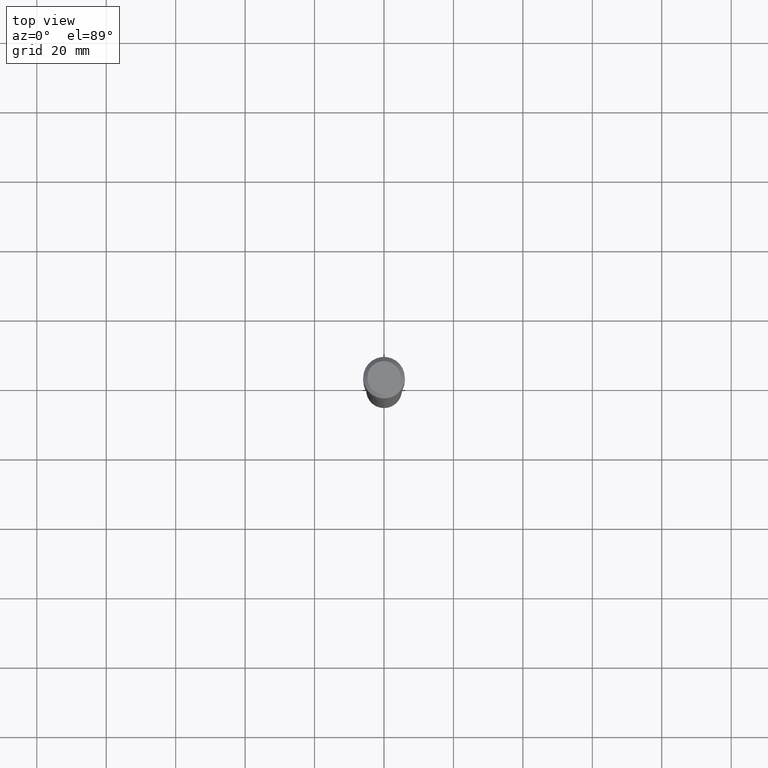
[diagram: clean part render]
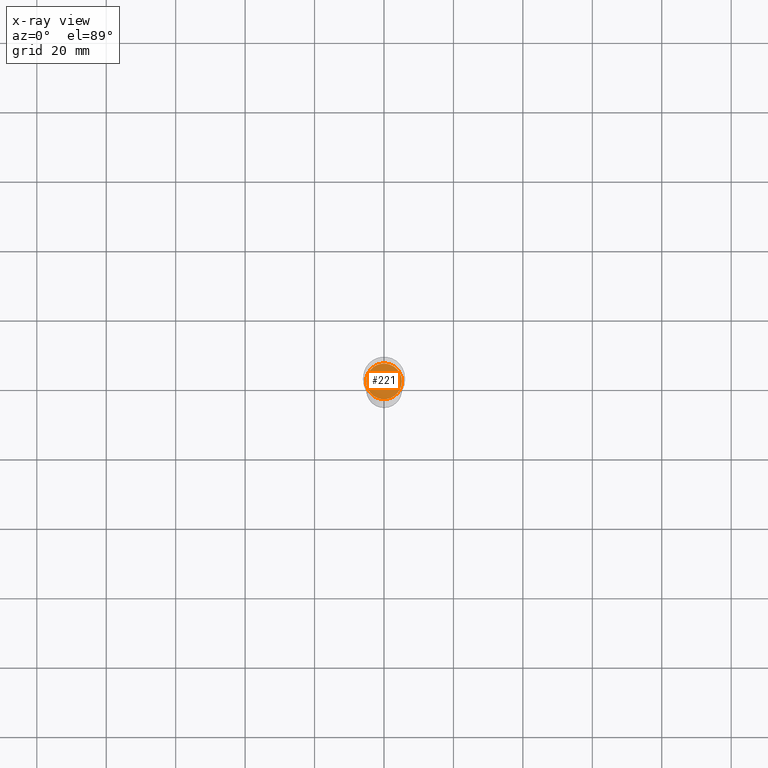
[diagram: x-ray — body ghosted, one internal face saturated and labeled with its STEP entity id]
A machine part, top view, then the same camera in x-ray: the body is ghosted and one INTERNAL B-rep face — a face not visible from any outside direction — is saturated and labeled: STEP entity #221.
In plain terms, the highlighted planar face has unit normal (-0, 0, 1).
Its self-contained STEP definition (entity closure, byte-faithful):
#14 = CARTESIAN_POINT ( 'NONE',  ( 6.109514718492326640E-29, -8.722767828831831042E-15, -2.498299999999999965 ) ) ;
#27 = FACE_OUTER_BOUND ( 'NONE', #418, .T. ) ;
#30 = VERTEX_POINT ( 'NONE', #462 ) ;
#44 = AXIS2_PLACEMENT_3D ( 'NONE', #93, #62, #99 ) ;
#62 = DIRECTION ( 'NONE',  ( -2.445468806185136597E-29, 3.491481338843145583E-15, 1.000000000000000000 ) ) ;
#70 = EDGE_CURVE ( 'NONE', #30, #326, #130, .T. ) ;
#93 = CARTESIAN_POINT ( 'NONE',  ( 6.109514718492326640E-29, -8.722767828831831042E-15, -2.498299999999999965 ) ) ;
#99 = DIRECTION ( 'NONE',  ( 1.000000000000000000, -6.982962677686264344E-15, 0.000000000000000000 ) ) ;
#130 = CIRCLE ( 'NONE', #298, 0.2022500000000000131 ) ;
#145 = DIRECTION ( 'NONE',  ( 1.000000000000000000, -6.982962677686265922E-15, 4.876176775795935793E-29 ) ) ;
#185 = PLANE ( 'NONE',  #304 ) ;
#221 = ADVANCED_FACE ( 'NONE', ( #27 ), #185, .F. ) ;
#266 = DIRECTION ( 'NONE',  ( -2.438088387897960049E-29, 3.491481338843145188E-15, 1.000000000000000000 ) ) ;
#273 = ORIENTED_EDGE ( 'NONE', *, *, #473, .F. ) ;
#298 = AXIS2_PLACEMENT_3D ( 'NONE', #14, #328, #353 ) ;
#304 = AXIS2_PLACEMENT_3D ( 'NONE', #397, #266, #145 ) ;
#312 = CIRCLE ( 'NONE', #44, 0.2022500000000000131 ) ;
#322 = CARTESIAN_POINT ( 'NONE',  ( -0.2022500000000000131, -7.283045918582916136E-15, -2.498299999999999965 ) ) ;
#326 = VERTEX_POINT ( 'NONE', #322 ) ;
#328 = DIRECTION ( 'NONE',  ( -2.445468806185136597E-29, 3.491481338843145583E-15, 1.000000000000000000 ) ) ;
#353 = DIRECTION ( 'NONE',  ( 1.000000000000000000, -6.982962677686264344E-15, 0.000000000000000000 ) ) ;
#397 = CARTESIAN_POINT ( 'NONE',  ( 6.109514718492326640E-29, -8.722767828831831042E-15, -2.498299999999999965 ) ) ;
#415 = ORIENTED_EDGE ( 'NONE', *, *, #70, .F. ) ;
#418 = EDGE_LOOP ( 'NONE', ( #415, #273 ) ) ;
#462 = CARTESIAN_POINT ( 'NONE',  ( 0.2022500000000000131, -1.013507203039387713E-14, -2.498299999999999965 ) ) ;
#473 = EDGE_CURVE ( 'NONE', #326, #30, #312, .T. ) ;